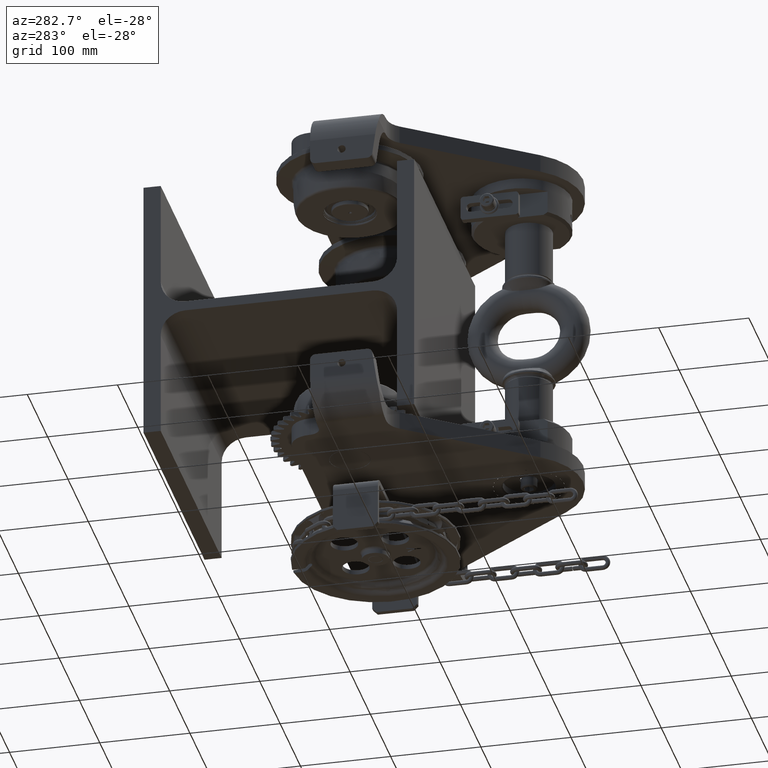
[diagram: clean part render]
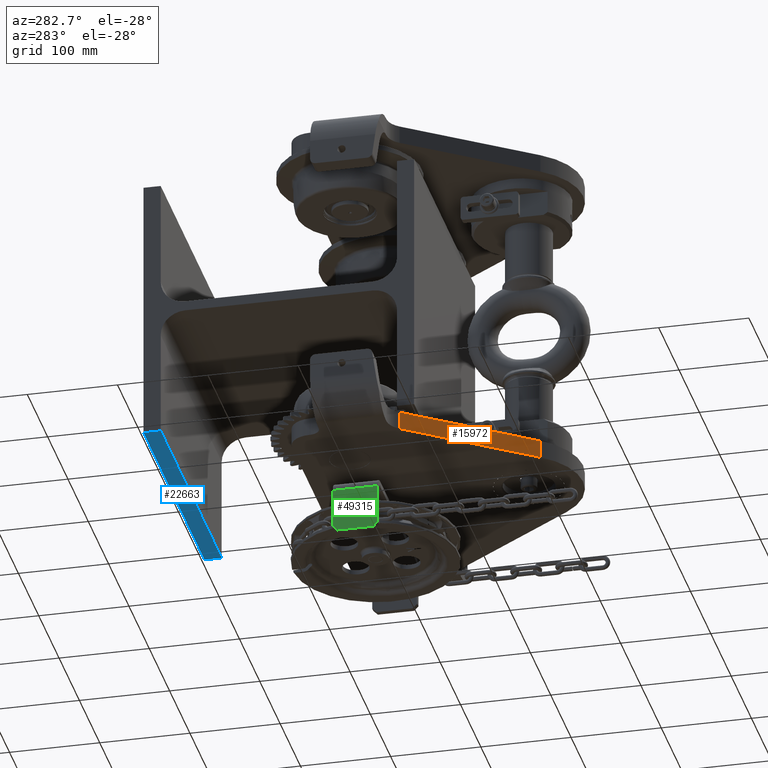
[diagram: same view with three faces highlighted in distinct colors, each labeled with its STEP entity id]
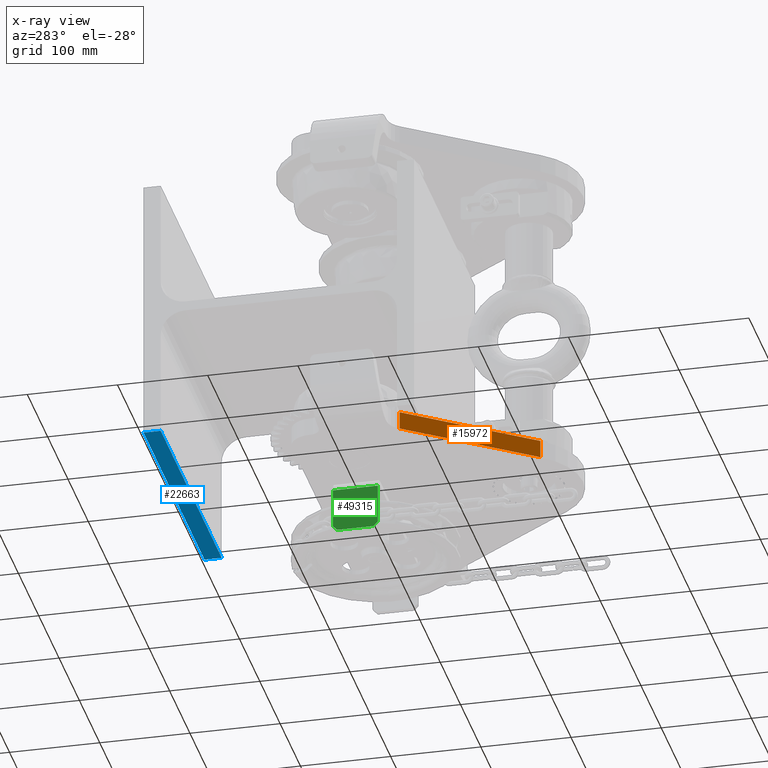
[diagram: x-ray of the same camera — body ghosted, the three highlighted faces saturated]
A machine part, auxiliary view with three faces highlighted in distinct colors.
The next image is the same camera in x-ray (body ghosted, the three faces saturated) — at least one of them is partly hidden behind the body in this view.
Their STEP definitions:

[orange] entity #15972 — the highlighted planar face has unit normal (-0.8073, -0.5901, 0).
#624 = EDGE_CURVE ( 'NONE', #59063, #28129, #38905, .T. ) ;
#6834 = EDGE_CURVE ( 'NONE', #12796, #43056, #34656, .T. ) ;
#7210 = CARTESIAN_POINT ( 'NONE',  ( -64.58471424461951900, -270.7103239338688900, -116.9999999999999400 ) ) ;
#12511 = CARTESIAN_POINT ( 'NONE',  ( -64.58471424461949100, -270.7103239338688900, -185.0000000000000000 ) ) ;
#12796 = VERTEX_POINT ( 'NONE', #12511 ) ;
#15972 = ADVANCED_FACE ( 'NONE', ( #54016 ), #37926, .T. ) ;
#18137 = CARTESIAN_POINT ( 'NONE',  ( -162.5097832413108300, -136.7467737706657500, -116.9999999999999700 ) ) ;
#18977 = EDGE_CURVE ( 'NONE', #59063, #43056, #56836, .T. ) ;
#19837 = VECTOR ( 'NONE', #23723, 1000.000000000000000 ) ;
#23723 = DIRECTION ( 'NONE',  ( -5.551115123125781500E-017, 0.0000000000000000000, -1.000000000000000000 ) ) ;
#23895 = CARTESIAN_POINT ( 'NONE',  ( -162.5097832413108300, -136.7467737706657500, -165.0000000000000000 ) ) ;
#24433 = VECTOR ( 'NONE', #41542, 1000.000000000000100 ) ;
#27490 = VECTOR ( 'NONE', #59947, 1000.000000000000000 ) ;
#28129 = VERTEX_POINT ( 'NONE', #53119 ) ;
#29313 = EDGE_CURVE ( 'NONE', #28129, #12796, #41211, .T. ) ;
#30428 = CARTESIAN_POINT ( 'NONE',  ( -162.5097832413108300, -136.7467737706657500, -185.0000000000000000 ) ) ;
#33400 = DIRECTION ( 'NONE',  ( -0.8073089280577423500, -0.5901290491733642800, 4.481464799575798100E-017 ) ) ;
#34587 = ORIENTED_EDGE ( 'NONE', *, *, #6834, .F. ) ;
#34656 = LINE ( 'NONE', #41385, #61985 ) ;
#36765 = EDGE_LOOP ( 'NONE', ( #53649, #34587, #58068, #46792 ) ) ;
#37926 = PLANE ( 'NONE',  #53300 ) ;
#38905 = LINE ( 'NONE', #41761, #24433 ) ;
#41211 = LINE ( 'NONE', #7210, #27490 ) ;
#41385 = CARTESIAN_POINT ( 'NONE',  ( -162.5097832413108300, -136.7467737706657500, -185.0000000000000000 ) ) ;
#41542 = DIRECTION ( 'NONE',  ( 0.5901290491733642800, -0.8073089280577422400, -1.046810808802269200E-016 ) ) ;
#41761 = CARTESIAN_POINT ( 'NONE',  ( 37.95527627916913400, -410.9871836288267000, -165.0000000000000300 ) ) ;
#43056 = VERTEX_POINT ( 'NONE', #30428 ) ;
#46792 = ORIENTED_EDGE ( 'NONE', *, *, #624, .F. ) ;
#48664 = DIRECTION ( 'NONE',  ( -0.5901290491733642800, 0.8073089280577423500, 3.275874289462100500E-017 ) ) ;
#50000 = CARTESIAN_POINT ( 'NONE',  ( -162.5097832413108300, -136.7467737706657500, -116.9999999999999700 ) ) ;
#53119 = CARTESIAN_POINT ( 'NONE',  ( -64.58471424461949100, -270.7103239338688900, -165.0000000000000300 ) ) ;
#53300 = AXIS2_PLACEMENT_3D ( 'NONE', #18137, #33400, #48664 ) ;
#53649 = ORIENTED_EDGE ( 'NONE', *, *, #18977, .T. ) ;
#54016 = FACE_OUTER_BOUND ( 'NONE', #36765, .T. ) ;
#56836 = LINE ( 'NONE', #50000, #19837 ) ;
#57200 = DIRECTION ( 'NONE',  ( -0.5901290491733642800, 0.8073089280577423500, 3.275874289462100500E-017 ) ) ;
#58068 = ORIENTED_EDGE ( 'NONE', *, *, #29313, .F. ) ;
#59063 = VERTEX_POINT ( 'NONE', #23895 ) ;
#59947 = DIRECTION ( 'NONE',  ( -5.551115123125781500E-017, 0.0000000000000000000, -1.000000000000000000 ) ) ;
#61985 = VECTOR ( 'NONE', #57200, 1000.000000000000000 ) ;

[blue] entity #22663 — the highlighted planar face has unit normal (0, -0, -1).
#63 = LINE ( 'NONE', #37881, #54740 ) ;
#2011 = VERTEX_POINT ( 'NONE', #50708 ) ;
#2250 = EDGE_LOOP ( 'NONE', ( #11044, #61241, #4088, #17260 ) ) ;
#4088 = ORIENTED_EDGE ( 'NONE', *, *, #43613, .T. ) ;
#4764 = DIRECTION ( 'NONE',  ( 0.0000000000000000000, 1.000000000000000000, -2.921639538487251500E-015 ) ) ;
#6007 = VERTEX_POINT ( 'NONE', #42713 ) ;
#6203 = VERTEX_POINT ( 'NONE', #7522 ) ;
#7522 = CARTESIAN_POINT ( 'NONE',  ( 150.0000000000000000, 131.0000000000000000, -149.9999999999997700 ) ) ;
#11044 = ORIENTED_EDGE ( 'NONE', *, *, #48290, .F. ) ;
#15926 = AXIS2_PLACEMENT_3D ( 'NONE', #55741, #65808, #4764 ) ;
#17260 = ORIENTED_EDGE ( 'NONE', *, *, #53913, .T. ) ;
#19284 = CARTESIAN_POINT ( 'NONE',  ( -150.0000000000000000, 150.0000000000000300, -149.9999999999998300 ) ) ;
#22663 = ADVANCED_FACE ( 'NONE', ( #31300 ), #66028, .T. ) ;
#25813 = VECTOR ( 'NONE', #36570, 1000.000000000000000 ) ;
#28881 = LINE ( 'NONE', #40140, #42541 ) ;
#29036 = DIRECTION ( 'NONE',  ( 1.000000000000000000, 0.0000000000000000000, 0.0000000000000000000 ) ) ;
#31300 = FACE_OUTER_BOUND ( 'NONE', #2250, .T. ) ;
#36570 = DIRECTION ( 'NONE',  ( 0.0000000000000000000, 1.000000000000000000, -2.921639538487251500E-015 ) ) ;
#37881 = CARTESIAN_POINT ( 'NONE',  ( -150.0000000000000000, 131.0000000000000000, -149.9999999999997700 ) ) ;
#38528 = CARTESIAN_POINT ( 'NONE',  ( -150.0000000000000000, 131.0000000000000000, -149.9999999999997700 ) ) ;
#40140 = CARTESIAN_POINT ( 'NONE',  ( -150.0000000000000000, 150.0000000000000300, -149.9999999999998300 ) ) ;
#40583 = DIRECTION ( 'NONE',  ( 1.000000000000000000, 0.0000000000000000000, 0.0000000000000000000 ) ) ;
#42541 = VECTOR ( 'NONE', #40583, 1000.000000000000000 ) ;
#42698 = LINE ( 'NONE', #61697, #25813 ) ;
#42713 = CARTESIAN_POINT ( 'NONE',  ( -150.0000000000000000, 131.0000000000000000, -149.9999999999997700 ) ) ;
#43613 = EDGE_CURVE ( 'NONE', #6007, #64522, #63, .T. ) ;
#48290 = EDGE_CURVE ( 'NONE', #6203, #2011, #42698, .T. ) ;
#49132 = VECTOR ( 'NONE', #29036, 1000.000000000000000 ) ;
#50708 = CARTESIAN_POINT ( 'NONE',  ( 150.0000000000000000, 150.0000000000000300, -149.9999999999998300 ) ) ;
#52730 = DIRECTION ( 'NONE',  ( 0.0000000000000000000, 1.000000000000000000, -2.921639538487251500E-015 ) ) ;
#53913 = EDGE_CURVE ( 'NONE', #64522, #2011, #28881, .T. ) ;
#54740 = VECTOR ( 'NONE', #52730, 1000.000000000000000 ) ;
#55741 = CARTESIAN_POINT ( 'NONE',  ( -150.0000000000000000, 131.0000000000000000, -149.9999999999997700 ) ) ;
#57281 = LINE ( 'NONE', #38528, #49132 ) ;
#61241 = ORIENTED_EDGE ( 'NONE', *, *, #61703, .F. ) ;
#61697 = CARTESIAN_POINT ( 'NONE',  ( 150.0000000000000000, 131.0000000000000000, -149.9999999999997700 ) ) ;
#61703 = EDGE_CURVE ( 'NONE', #6007, #6203, #57281, .T. ) ;
#64522 = VERTEX_POINT ( 'NONE', #19284 ) ;
#65808 = DIRECTION ( 'NONE',  ( 0.0000000000000000000, -2.921639538487251500E-015, -1.000000000000000000 ) ) ;
#66028 = PLANE ( 'NONE',  #15926 ) ;

[green] entity #49315 — the highlighted planar face has unit normal (1, -0, -0).
#735 = FACE_OUTER_BOUND ( 'NONE', #65747, .T. ) ;
#1421 = CARTESIAN_POINT ( 'NONE',  ( -100.0000000000001000, -93.49999999999971600, -266.9999999999998300 ) ) ;
#3187 = LINE ( 'NONE', #9763, #33726 ) ;
#5645 = DIRECTION ( 'NONE',  ( 1.000000000000000000, -7.537537673196362100E-016, -7.144259996005897500E-016 ) ) ;
#6344 = CARTESIAN_POINT ( 'NONE',  ( -100.0000000000000700, -48.49999999999975800, -261.9999999999997700 ) ) ;
#6597 = DIRECTION ( 'NONE',  ( -1.038159869190176800E-015, -0.7071067811865455700, -0.7071067811865493500 ) ) ;
#9763 = CARTESIAN_POINT ( 'NONE',  ( -100.0000000000001600, -98.49999999999975800, -266.9999999999998900 ) ) ;
#9765 = VERTEX_POINT ( 'NONE', #20955 ) ;
#9922 = VERTEX_POINT ( 'NONE', #1421 ) ;
#11323 = ORIENTED_EDGE ( 'NONE', *, *, #39617, .F. ) ;
#15513 = CARTESIAN_POINT ( 'NONE',  ( -100.0000000000001100, -98.49999999999978700, -217.9999999999998300 ) ) ;
#17259 = EDGE_CURVE ( 'NONE', #9922, #23705, #3187, .T. ) ;
#18209 = EDGE_CURVE ( 'NONE', #57333, #23705, #44061, .T. ) ;
#20955 = CARTESIAN_POINT ( 'NONE',  ( -100.0000000000001100, -98.49999999999975800, -217.9999999999998300 ) ) ;
#22518 = VECTOR ( 'NONE', #56326, 1000.000000000000000 ) ;
#23705 = VERTEX_POINT ( 'NONE', #47595 ) ;
#26397 = VECTOR ( 'NONE', #6597, 1000.000000000000100 ) ;
#26522 = VECTOR ( 'NONE', #59544, 1000.000000000000000 ) ;
#26540 = LINE ( 'NONE', #30678, #22518 ) ;
#30678 = CARTESIAN_POINT ( 'NONE',  ( -100.0000000000001100, -98.49999999999978700, -217.9999999999998300 ) ) ;
#31187 = PLANE ( 'NONE',  #65050 ) ;
#32852 = LINE ( 'NONE', #34246, #35318 ) ;
#33726 = VECTOR ( 'NONE', #35337, 1000.000000000000000 ) ;
#34246 = CARTESIAN_POINT ( 'NONE',  ( -100.0000000000001100, -98.49999999999978700, -217.9999999999998300 ) ) ;
#34926 = DIRECTION ( 'NONE',  ( -7.144259996005892600E-016, 5.906483521212592500E-016, -1.000000000000000000 ) ) ;
#35318 = VECTOR ( 'NONE', #34926, 1000.000000000000000 ) ;
#35337 = DIRECTION ( 'NONE',  ( 7.537537673196370900E-016, 1.000000000000000000, 5.906483521212584600E-016 ) ) ;
#37192 = ORIENTED_EDGE ( 'NONE', *, *, #45960, .T. ) ;
#39270 = EDGE_CURVE ( 'NONE', #9765, #64025, #26540, .T. ) ;
#39617 = EDGE_CURVE ( 'NONE', #9765, #55126, #32852, .T. ) ;
#40509 = CARTESIAN_POINT ( 'NONE',  ( -100.0000000000001400, -98.49999999999975800, -261.9999999999998300 ) ) ;
#42622 = LINE ( 'NONE', #55457, #26522 ) ;
#44061 = LINE ( 'NONE', #51472, #26397 ) ;
#45960 = EDGE_CURVE ( 'NONE', #9922, #55126, #48238, .T. ) ;
#47595 = CARTESIAN_POINT ( 'NONE',  ( -100.0000000000000700, -53.49999999999976600, -266.9999999999997700 ) ) ;
#48238 = LINE ( 'NONE', #65446, #61171 ) ;
#49093 = ORIENTED_EDGE ( 'NONE', *, *, #18209, .T. ) ;
#49315 = ADVANCED_FACE ( 'NONE', ( #735 ), #31187, .F. ) ;
#51472 = CARTESIAN_POINT ( 'NONE',  ( -100.0000000000000900, -53.49999999999977300, -266.9999999999998300 ) ) ;
#55126 = VERTEX_POINT ( 'NONE', #40509 ) ;
#55457 = CARTESIAN_POINT ( 'NONE',  ( -100.0000000000000400, -48.49999999999980100, -217.9999999999998600 ) ) ;
#55937 = DIRECTION ( 'NONE',  ( 7.144259996005892600E-016, -5.906483521212592500E-016, 1.000000000000000000 ) ) ;
#56326 = DIRECTION ( 'NONE',  ( 7.537537673196370900E-016, 1.000000000000000000, 5.906483521212584600E-016 ) ) ;
#57333 = VERTEX_POINT ( 'NONE', #6344 ) ;
#59544 = DIRECTION ( 'NONE',  ( -7.144259996005892600E-016, 5.906483521212592500E-016, -1.000000000000000000 ) ) ;
#60550 = DIRECTION ( 'NONE',  ( -2.780893124307118600E-017, -0.7071067811865500200, 0.7071067811865451300 ) ) ;
#61171 = VECTOR ( 'NONE', #60550, 1000.000000000000100 ) ;
#62544 = EDGE_CURVE ( 'NONE', #64025, #57333, #42622, .T. ) ;
#63249 = CARTESIAN_POINT ( 'NONE',  ( -100.0000000000000400, -48.49999999999980100, -217.9999999999998600 ) ) ;
#63275 = ORIENTED_EDGE ( 'NONE', *, *, #17259, .F. ) ;
#63959 = ORIENTED_EDGE ( 'NONE', *, *, #62544, .T. ) ;
#64025 = VERTEX_POINT ( 'NONE', #63249 ) ;
#65050 = AXIS2_PLACEMENT_3D ( 'NONE', #15513, #5645, #55937 ) ;
#65446 = CARTESIAN_POINT ( 'NONE',  ( -100.0000000000001600, -98.49999999999975800, -261.9999999999998900 ) ) ;
#65747 = EDGE_LOOP ( 'NONE', ( #63275, #37192, #11323, #66288, #63959, #49093 ) ) ;
#66288 = ORIENTED_EDGE ( 'NONE', *, *, #39270, .T. ) ;